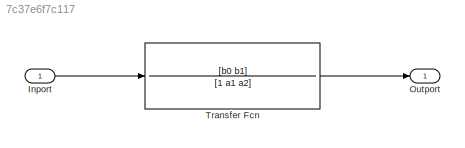
MODEL slx_7c37e6f7c117
KIND model
CONFIG AbsTol = auto
CONFIG EnableMultiTasking = off
CONFIG FixedStep = auto
CONFIG MaxStep = auto
CONFIG MinStep = auto
CONFIG RelTol = 1e-3
CONFIG SampleTimeConstraint = Unconstrained
CONFIG SolverName = VariableStepAuto
CONFIG StartTime = 0.0
CONFIG StopTime = 10.0
BLOCK [Inport] Inport
BLOCK [Outport] Outport
BLOCK [TransferFcn] Transfer Fcn
  Denominator = [1 a1 a2]
  Numerator = [b0 b1]
LINE Inport:1 -> Transfer Fcn:1
LINE Transfer Fcn:1 -> Outport:1
